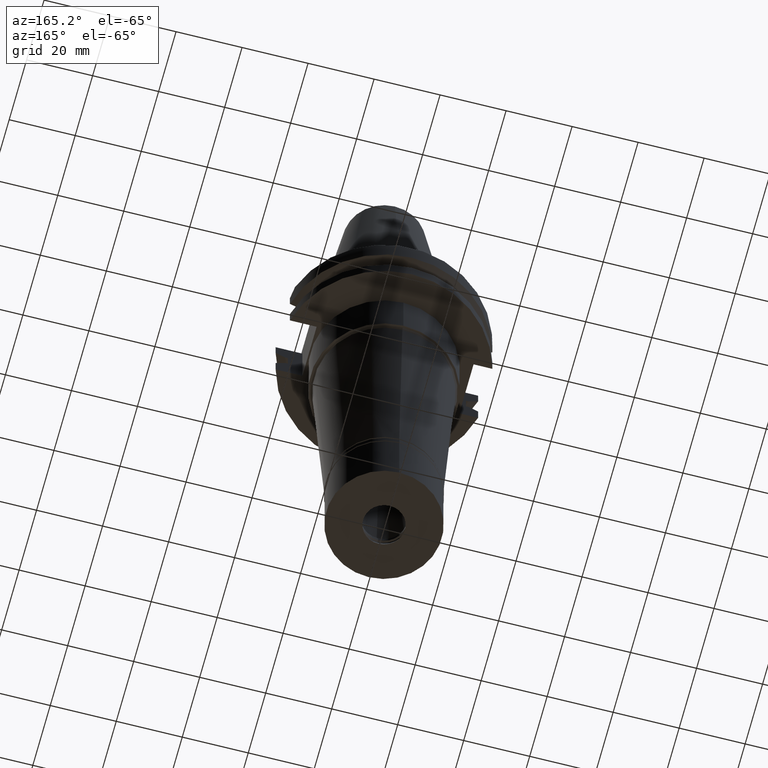
[diagram: clean part render]
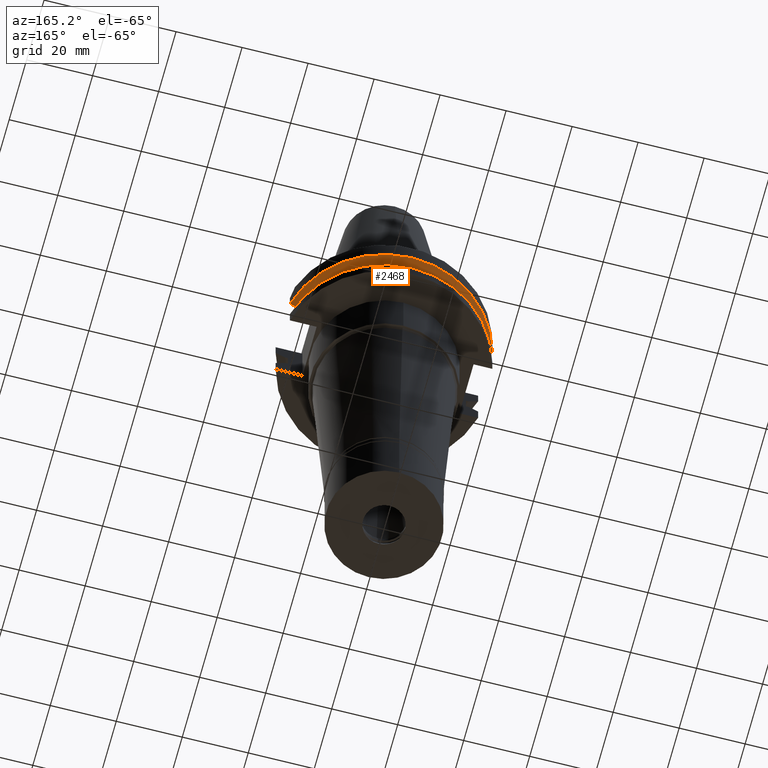
[diagram: same view with one face highlighted and labeled with its STEP entity id]
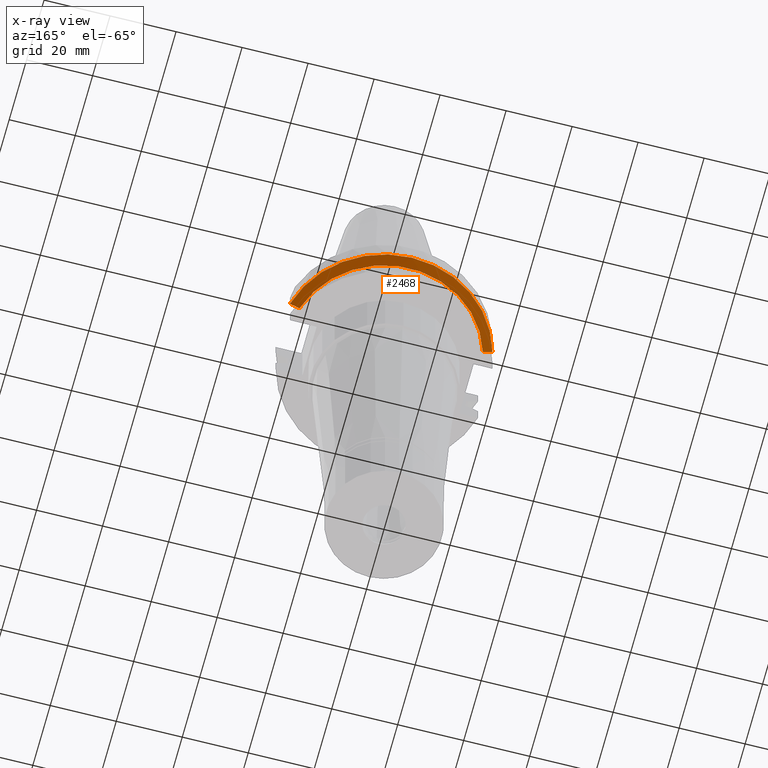
[diagram: x-ray of the same camera — body ghosted, the highlighted face saturated]
A machine part, auxiliary view. The second image highlights one B-rep face of the part: STEP entity #2468.
The next image is the same camera in x-ray: the body ghosted, the highlighted face saturated — about 0% of this face is hidden behind the body in this view.
In plain terms, the highlighted conical surface has half-angle 60 deg.
Its self-contained STEP definition (entity closure, byte-faithful):
#98 = ORIENTED_EDGE ( 'NONE', *, *, #1145, .T. ) ;
#298 = CARTESIAN_POINT ( 'NONE',  ( 30.67550165918999738, 8.189999875296001264, -7.608164472357999308 ) ) ;
#405 = ORIENTED_EDGE ( 'NONE', *, *, #1418, .T. ) ;
#448 = VERTEX_POINT ( 'NONE', #483 ) ;
#471 = CARTESIAN_POINT ( 'NONE',  ( 27.79399588427999745, 8.189999365899998551, -9.210000000000999165 ) ) ;
#483 = CARTESIAN_POINT ( 'NONE',  ( -30.67550146538999911, 8.190000601148000214, -7.608157985709000037 ) ) ;
#643 = CARTESIAN_POINT ( 'NONE',  ( -30.67550146538999911, 8.190000601148000214, -7.608157985709000037 ) ) ;
#650 = FACE_OUTER_BOUND ( 'NONE', #1540, .T. ) ;
#797 = ORIENTED_EDGE ( 'NONE', *, *, #1247, .T. ) ;
#843 = CIRCLE ( 'NONE', #1329, 28.97553755052999946 ) ;
#849 = CONICAL_SURFACE ( 'NONE', #2165, 30.36276877526999840, 1.047197551196400456 ) ;
#885 = CARTESIAN_POINT ( 'NONE',  ( -28.71170642078588386, 8.190000378777559931, -8.701759819570268562 ) ) ;
#914 = DIRECTION ( 'NONE',  ( 0.0000000000000000000, 1.000000000000000000, 0.0000000000000000000 ) ) ;
#1096 = DIRECTION ( 'NONE',  ( 0.9661575315241073270, 0.2579527559055020958, 0.0000000000000000000 ) ) ;
#1117 = AXIS2_PLACEMENT_3D ( 'NONE', #1134, #3118, #1096 ) ;
#1134 = CARTESIAN_POINT ( 'NONE',  ( 0.0000000000000000000, 1.121665249527999917E-14, -7.608163357944999206 ) ) ;
#1145 = EDGE_CURVE ( 'NONE', #1222, #2206, #1562, .T. ) ;
#1172 = CARTESIAN_POINT ( 'NONE',  ( 29.67220411598517416, 8.189999750685286628, -8.167814094913365963 ) ) ;
#1222 = VERTEX_POINT ( 'NONE', #2652 ) ;
#1247 = EDGE_CURVE ( 'NONE', #2206, #1333, #843, .T. ) ;
#1329 = AXIS2_PLACEMENT_3D ( 'NONE', #1570, #3148, #1633 ) ;
#1333 = VERTEX_POINT ( 'NONE', #1710 ) ;
#1418 = EDGE_CURVE ( 'NONE', #1333, #448, #2199, .T. ) ;
#1422 = CARTESIAN_POINT ( 'NONE',  ( -27.79398348482000003, 8.190000189175000500, -9.210000000000999165 ) ) ;
#1540 = EDGE_LOOP ( 'NONE', ( #98, #797, #405, #2267 ) ) ;
#1562 = B_SPLINE_CURVE_WITH_KNOTS ( 'NONE', 3,
 ( #298, #1172, #2436, #2668 ),
 .UNSPECIFIED., .F., .F.,
 ( 4, 4 ),
 ( 0.0000000000000000000, 1.000000000000000000 ),
 .UNSPECIFIED. ) ;
#1570 = CARTESIAN_POINT ( 'NONE',  ( 0.0000000000000000000, 1.121665249527999917E-14, -9.210000000002999343 ) ) ;
#1633 = DIRECTION ( 'NONE',  ( 0.0000000000000000000, 1.000000000000000000, 0.0000000000000000000 ) ) ;
#1710 = CARTESIAN_POINT ( 'NONE',  ( -27.79398348482000003, 8.190000189175000500, -9.210000000000999165 ) ) ;
#1931 = CARTESIAN_POINT ( 'NONE',  ( -29.67220490029862034, 8.190001201864017588, -8.167813437756086259 ) ) ;
#1992 = CIRCLE ( 'NONE', #1117, 31.74999999999998579 ) ;
#2165 = AXIS2_PLACEMENT_3D ( 'NONE', #2722, #2527, #914 ) ;
#2199 = B_SPLINE_CURVE_WITH_KNOTS ( 'NONE', 3,
 ( #1422, #885, #1931, #643 ),
 .UNSPECIFIED., .F., .F.,
 ( 4, 4 ),
 ( 0.0000000000000000000, 1.000000000000000000 ),
 .UNSPECIFIED. ) ;
#2206 = VERTEX_POINT ( 'NONE', #471 ) ;
#2267 = ORIENTED_EDGE ( 'NONE', *, *, #2290, .F. ) ;
#2290 = EDGE_CURVE ( 'NONE', #1222, #448, #1992, .T. ) ;
#2436 = CARTESIAN_POINT ( 'NONE',  ( 28.71170969509702786, 8.189998730403125649, -8.701758253033702317 ) ) ;
#2468 = ADVANCED_FACE ( 'NONE', ( #650 ), #849, .T. ) ;
#2527 = DIRECTION ( 'NONE',  ( 0.0000000000000000000, 0.0000000000000000000, 1.000000000000000000 ) ) ;
#2652 = CARTESIAN_POINT ( 'NONE',  ( 30.67550165918999738, 8.189999875296001264, -7.608164472357999308 ) ) ;
#2668 = CARTESIAN_POINT ( 'NONE',  ( 27.79399588427999745, 8.189999365899998551, -9.210000000000999165 ) ) ;
#2722 = CARTESIAN_POINT ( 'NONE',  ( 0.0000000000000000000, 1.121665249527999917E-14, -8.409081678974001051 ) ) ;
#3118 = DIRECTION ( 'NONE',  ( 0.0000000000000000000, 0.0000000000000000000, 1.000000000000000000 ) ) ;
#3148 = DIRECTION ( 'NONE',  ( 0.0000000000000000000, 0.0000000000000000000, 1.000000000000000000 ) ) ;